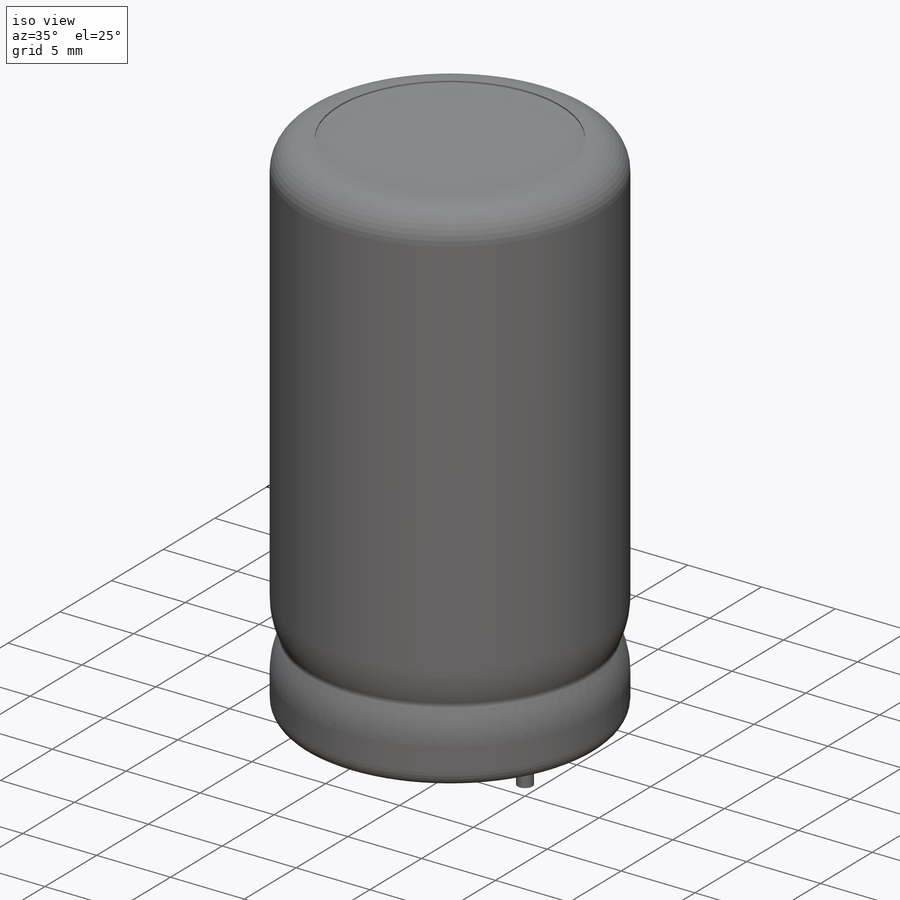
[diagram: iso view]
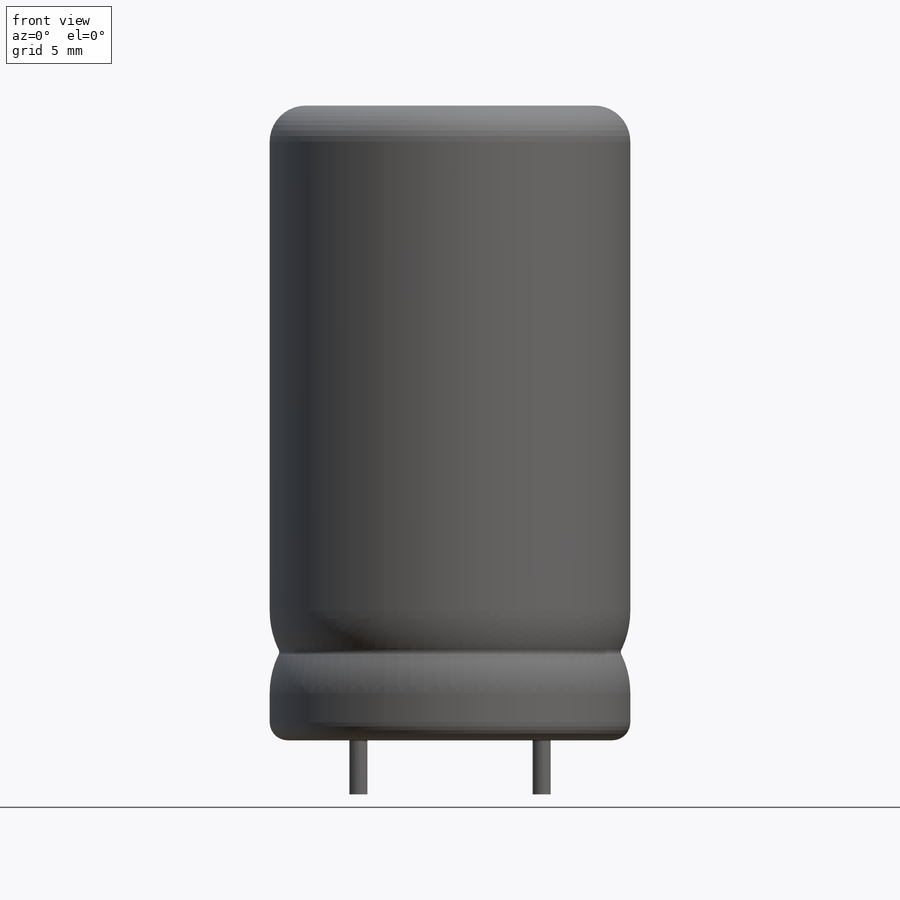
[diagram: front view]
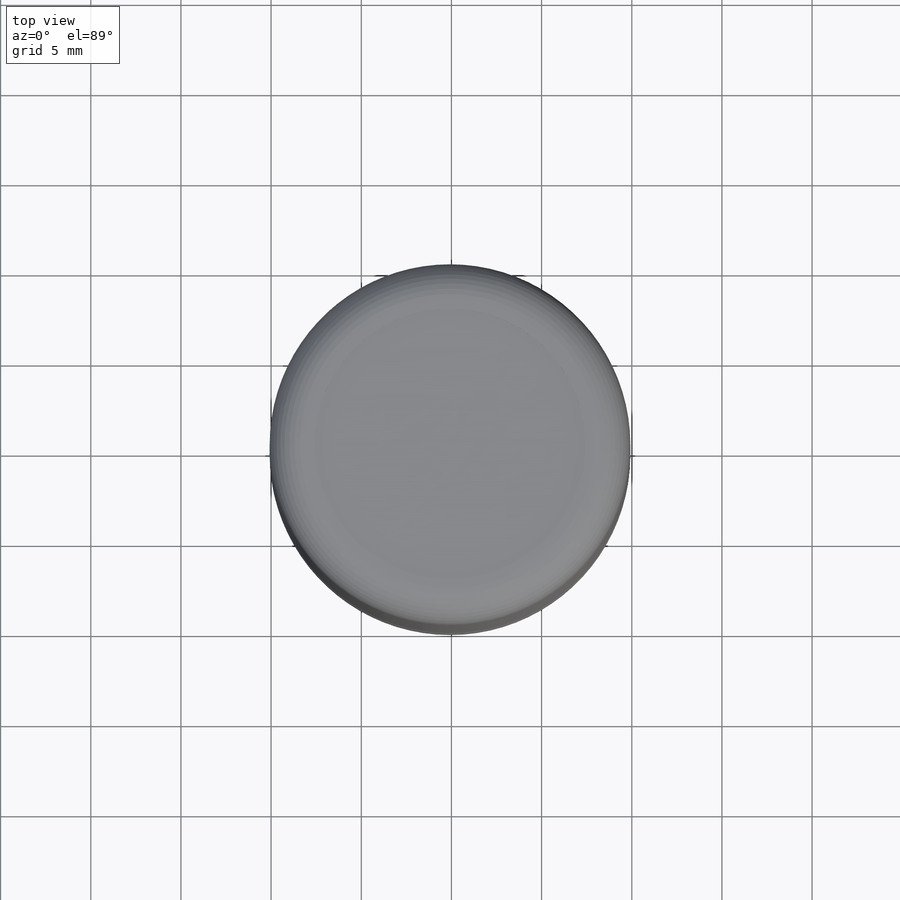
[diagram: top view]
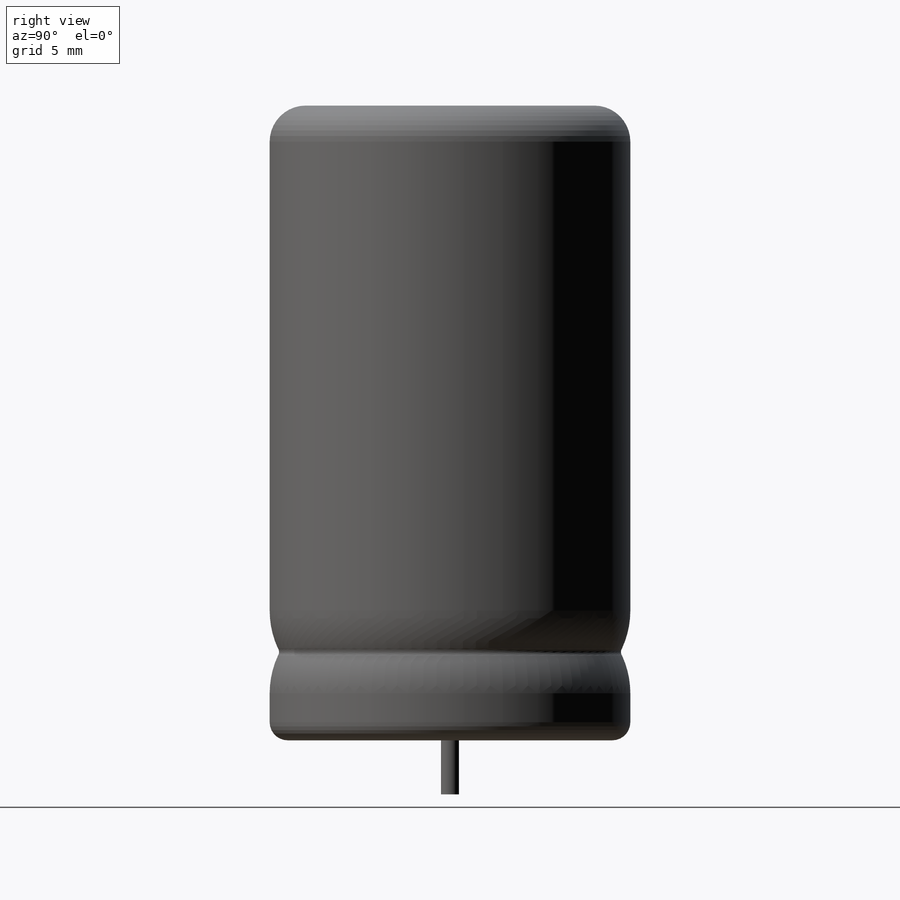
[diagram: right view]
SOLIDWORKS PART (.sldprt)
format: sldprt  version: not decoded by parser v0  size: 306,688 bytes
history: native  units: mm
features: sketch x8, extrude x4, cut_extrude x2, fillet x2, material x1, cut_revolve x1, plane x1 (+12 scaffold rows collapsed)
feature tree (31):
  scaffold x12  (default folders/planes/origin — collapsed)
  material  "Material <not specified>"
  sketch  "Sketch1"  dims[D1=1.0mm]
  extrude  "Base-Extrude"  Depth=3mm
  sketch  "Sketch2"  dims[D1=15.0mm D2=2.42mm]
  extrude  "Boss-Extrude1"  Depth=0.690752mm
  sketch  "Sketch3"  dims[D1=9.66mm]
  extrude  "Boss-Extrude2"  Depth=3mm
  sketch  "Sketch4"  dims[D1=15.0mm D2=20.0mm]
  extrude  "Boss-Extrude3"  Depth=35.2mm
  sketch  "Sketch5"  dims[D1=15.0mm]
  cut_extrude  "Cut-Extrude1"  Depth=0.1mm
  fillet  "Fillet1"  Radius=2mm
  fillet  "Fillet2"  Radius=1mm
  sketch  "Sketch6"  dims[D1=0.42mm D2=4.69mm D3=9.545mm D4=4.58mm D5=2.61mm D6=0.3mm D7=0.5mm]
  cut_revolve  "Cut-Revolve1"  Angle=360deg
  sketch  "Sketch7"  dims[D1=15.0mm]
  cut_extrude  "Cut-Extrude2"  Depth=0.1mm
  plane  "Board Plane"  Offset=0.3mm
  sketch  "Component_Outline"
decode coverage: 16 of 17 modeling features carry decoded parameters
note: suppression state not decoded; provenance and decode notes live in map.json
